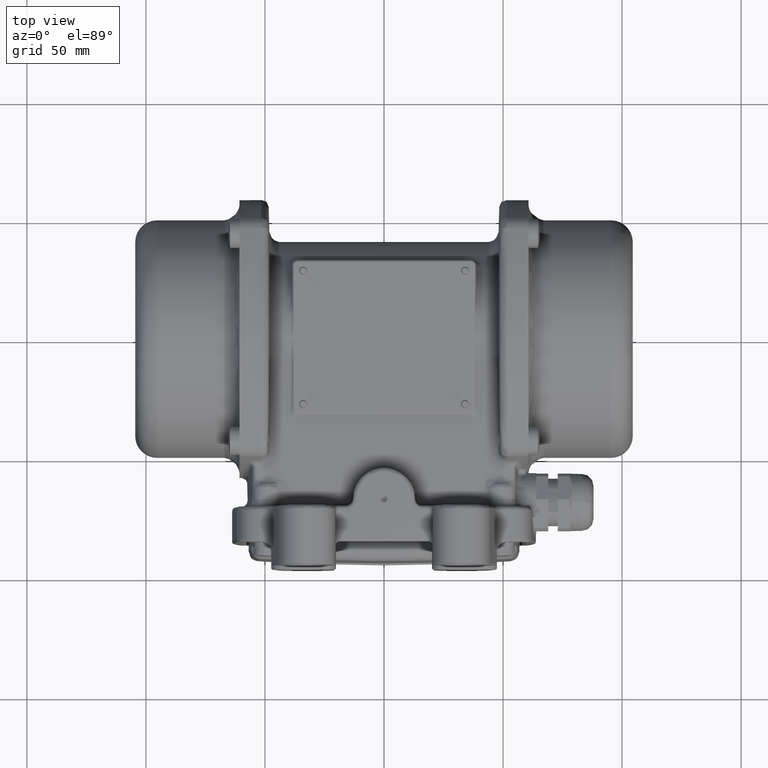
[diagram: clean part render]
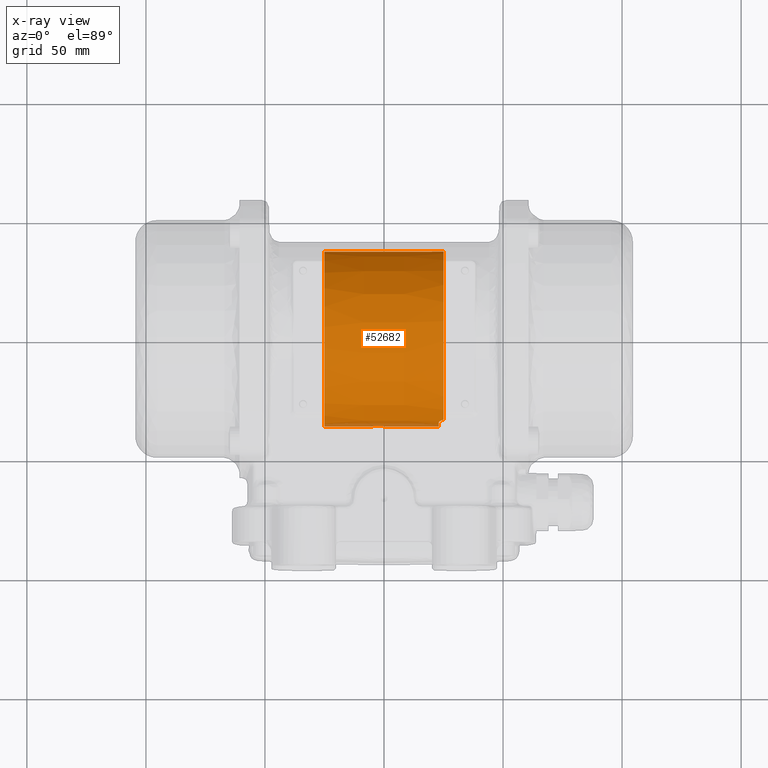
[diagram: x-ray — body ghosted, one internal face saturated and labeled with its STEP entity id]
A machine part, top view, then the same camera in x-ray: the body is ghosted and one INTERNAL B-rep face — a face not visible from any outside direction — is saturated and labeled: STEP entity #52682.
In plain terms, the highlighted conical surface has half-angle 0.029 deg.
Its self-contained STEP definition (entity closure, byte-faithful):
#650 = EDGE_CURVE ( 'NONE', #89408, #150633, #134071, .T. ) ;
#830 = VECTOR ( 'NONE', #108303, 999.9999999999998900 ) ;
#1145 = CARTESIAN_POINT ( 'NONE',  ( -0.9563445368678176200, -36.66997125892190500, 1.759931420456228400 ) ) ;
#1774 = CARTESIAN_POINT ( 'NONE',  ( -0.4733171760671993100, -36.69376556340463900, 1.172232946256167600 ) ) ;
#2522 = EDGE_LOOP ( 'NONE', ( #168771, #90016, #100109, #40108, #9744, #71952, #42666, #163345, #77190 ) ) ;
#7590 = CARTESIAN_POINT ( 'NONE',  ( 23.00049999993802900, -7.171198182231225000E-015, -3.191960584727761400E-016 ) ) ;
#9744 = ORIENTED_EDGE ( 'NONE', *, *, #32476, .F. ) ;
#10316 = CARTESIAN_POINT ( 'NONE',  ( -25.00000000000567700, 36.70000000000000300, -3.824585524291988800E-015 ) ) ;
#10339 = CARTESIAN_POINT ( 'NONE',  ( -4.044886234941166900, -36.66847809638584000, 1.758833591547438700 ) ) ;
#10419 = CONICAL_SURFACE ( 'NONE', #129312, 36.72499999999999400, 0.0004999999583332529200 ) ;
#17245 = CARTESIAN_POINT ( 'NONE',  ( -2.194009867523170500, -36.63799577085398300, 2.320615789954615100 ) ) ;
#19578 = CARTESIAN_POINT ( 'NONE',  ( 24.05293608319150400, -34.39967703996565300, 12.85961930629068000 ) ) ;
#20336 = CARTESIAN_POINT ( 'NONE',  ( -4.836381847742648800, -36.71008180907612900, 0.1542844357191367500 ) ) ;
#21288 = DIRECTION ( 'NONE',  ( -8.908856479196493600E-014, -1.000000000000000000, 1.387778780781568600E-017 ) ) ;
#21886 = LINE ( 'NONE', #66995, #151036 ) ;
#22029 = CARTESIAN_POINT ( 'NONE',  ( 23.72089544662957600, -34.54720040181219800, 12.45754743953186500 ) ) ;
#23439 = CARTESIAN_POINT ( 'NONE',  ( -25.00000000000568800, 6.537864569367977300E-015, 2.708719339139787900E-015 ) ) ;
#24310 = EDGE_CURVE ( 'NONE', #168689, #128226, #88365, .T. ) ;
#24654 = DIRECTION ( 'NONE',  ( 1.000000000000000000, -2.556573816576412400E-016, -6.111328068669280300E-017 ) ) ;
#25878 = CARTESIAN_POINT ( 'NONE',  ( -3.115173471093345200, -36.64064746252757500, 2.273738518693400500 ) ) ;
#32476 = EDGE_CURVE ( 'NONE', #162233, #52185, #67754, .T. ) ;
#35752 = CARTESIAN_POINT ( 'NONE',  ( 24.42159301464997900, -34.26481681451846800, 13.21705462366134000 ) ) ;
#38398 = CARTESIAN_POINT ( 'NONE',  ( -3.536459632794884700, -36.65073132372451400, 2.098840311261358100 ) ) ;
#39972 = EDGE_CURVE ( 'NONE', #52185, #168689, #93422, .T. ) ;
#40108 = ORIENTED_EDGE ( 'NONE', *, *, #39972, .F. ) ;
#42666 = ORIENTED_EDGE ( 'NONE', *, *, #125023, .F. ) ;
#44071 = CARTESIAN_POINT ( 'NONE',  ( -0.6441701630991381000, -36.68464517794495100, 1.427269098002925000 ) ) ;
#47614 = CARTESIAN_POINT ( 'NONE',  ( 23.18202040070352200, -34.91234112290308600, 11.39372132635884000 ) ) ;
#48231 = CARTESIAN_POINT ( 'NONE',  ( 23.04671850138258200, -35.07007580287690000, 10.90238625934902900 ) ) ;
#49321 = DIRECTION ( 'NONE',  ( -1.000000000000000000, 2.784061241712093500E-016, 1.387778780781444600E-017 ) ) ;
#50080 = CARTESIAN_POINT ( 'NONE',  ( 23.23878706364592600, -34.85879805162375800, 11.55650086603222900 ) ) ;
#51452 = CARTESIAN_POINT ( 'NONE',  ( -4.836381847742647900, -36.71008180907612200, 1.985909209095113100E-015 ) ) ;
#51522 = AXIS2_PLACEMENT_3D ( 'NONE', #62674, #177739, #148563 ) ;
#52185 = VERTEX_POINT ( 'NONE', #61620 ) ;
#52682 = ADVANCED_FACE ( 'NONE', ( #54899 ), #10419, .F. ) ;
#54899 = FACE_OUTER_BOUND ( 'NONE', #2522, .T. ) ;
#59025 = CARTESIAN_POINT ( 'NONE',  ( -0.7408807674218321800, -36.67977550077633000, 1.544710351402691000 ) ) ;
#61620 = CARTESIAN_POINT ( 'NONE',  ( 23.00049999993763400, -35.27279131684341700, 10.22166263777148700 ) ) ;
#62601 = DIRECTION ( 'NONE',  ( -2.834129572732701000E-016, -1.000000000000000000, 1.387778780781445700E-017 ) ) ;
#62674 = CARTESIAN_POINT ( 'NONE',  ( 25.00000000000568400, -7.727871227531681500E-015, -3.469446951954400600E-016 ) ) ;
#63226 = DIRECTION ( 'NONE',  ( 1.000000000000000000, -2.556573816576412400E-016, -6.111328068669280300E-017 ) ) ;
#66388 = CARTESIAN_POINT ( 'NONE',  ( -3.927401288222144500, -36.66371377929940700, 1.855499260410627300 ) ) ;
#66995 = CARTESIAN_POINT ( 'NONE',  ( 25.00000000000342100, 36.72499999999998700, -5.354121822306047900E-015 ) ) ;
#67754 = CIRCLE ( 'NONE', #177146, 36.72400024999996000 ) ;
#71952 = ORIENTED_EDGE ( 'NONE', *, *, #78804, .F. ) ;
#74284 = CARTESIAN_POINT ( 'NONE',  ( 25.00000000000340000, -36.72500000000000100, 1.627170620465773200E-016 ) ) ;
#76191 = CARTESIAN_POINT ( 'NONE',  ( 23.45004361148276900, -34.70067304166659700, 12.02314947196727800 ) ) ;
#77190 = ORIENTED_EDGE ( 'NONE', *, *, #650, .F. ) ;
#77617 = CARTESIAN_POINT ( 'NONE',  ( -4.761925981233983600, -36.70544621089631200, 0.6044238879550275500 ) ) ;
#78804 = EDGE_CURVE ( 'NONE', #144021, #162233, #156685, .T. ) ;
#78830 = DIRECTION ( 'NONE',  ( 0.9999998750000235200, 0.0004999999374996694700, -6.118144427287403200E-017 ) ) ;
#82489 = CARTESIAN_POINT ( 'NONE',  ( -3.672276898288279000, -36.65480044895253500, 2.026266372590647800 ) ) ;
#83697 = EDGE_CURVE ( 'NONE', #133466, #89408, #108622, .T. ) ;
#86358 = CARTESIAN_POINT ( 'NONE',  ( -0.1635977628726967800, -36.71241820111856000, 0.3085793634189432600 ) ) ;
#86968 = CARTESIAN_POINT ( 'NONE',  ( -1.747262620525883400, -36.64470127436946000, 2.216488131590863100 ) ) ;
#88365 = CIRCLE ( 'NONE', #51522, 36.72499999999999400 ) ;
#89408 = VERTEX_POINT ( 'NONE', #149793 ) ;
#90016 = ORIENTED_EDGE ( 'NONE', *, *, #179968, .T. ) ;
#91090 = CARTESIAN_POINT ( 'NONE',  ( 23.00050000396059600, -35.17288267098625500, 10.56642619933921700 ) ) ;
#93422 = B_SPLINE_CURVE_WITH_KNOTS ( 'NONE', 3,
 ( #177601, #91090, #48231, #47614, #50080, #175729, #76191, #121017, #22029, #107269, #19578, #35752, #120414, #162681 ),
 .UNSPECIFIED., .F., .F.,
 ( 4, 2, 2, 2, 2, 2, 4 ),
 ( 0.0000000000000000000, 0.2515002578573486400, 0.3772503867860229100, 0.5030005157146972800, 0.6287506446433716000, 0.7545007735720458100, 1.000000000000000000 ),
 .UNSPECIFIED. ) ;
#95578 = CARTESIAN_POINT ( 'NONE',  ( -4.260193310732995900, -36.67806698744738700, 1.543463494295272700 ) ) ;
#96400 = B_SPLINE_CURVE_WITH_KNOTS ( 'NONE', 3,
 ( #129999, #171600, #17245, #103143, #86968, #144251, #115641, #117462, #1145, #59025, #44071, #1774, #101930, #101299, #86358, #158539 ),
 .UNSPECIFIED., .F., .F.,
 ( 4, 2, 2, 2, 2, 2, 2, 4 ),
 ( 0.007300386405025709900, 0.007756672578726582300, 0.008212958752427454800, 0.008669244926128326400, 0.009125531099829198000, 0.009581817273530069500, 0.01003810344723094300, 0.01095067579463268600 ),
 .UNSPECIFIED. ) ;
#100109 = ORIENTED_EDGE ( 'NONE', *, *, #24310, .F. ) ;
#101299 = CARTESIAN_POINT ( 'NONE',  ( -0.2256572296308623800, -36.70830740008947400, 0.6151822656434143800 ) ) ;
#101930 = CARTESIAN_POINT ( 'NONE',  ( -0.4006803323397203400, -36.69793608354154200, 1.036417346520912300 ) ) ;
#103143 = CARTESIAN_POINT ( 'NONE',  ( -1.895557420755133800, -36.64185113269849100, 2.261347816940155700 ) ) ;
#107269 = CARTESIAN_POINT ( 'NONE',  ( 23.93514545349658100, -34.44816715744654800, 12.72914732060768200 ) ) ;
#108303 = DIRECTION ( 'NONE',  ( 0.9999998750000235200, -0.0004999999375001807800, -6.110633415449762700E-017 ) ) ;
#108622 = CIRCLE ( 'NONE', #184264, 36.69999999999999600 ) ;
#109891 = EDGE_CURVE ( 'NONE', #150633, #143309, #126282, .T. ) ;
#115641 = CARTESIAN_POINT ( 'NONE',  ( -1.330367244760326100, -36.65589035701060500, 2.027733354418234800 ) ) ;
#117462 = CARTESIAN_POINT ( 'NONE',  ( -1.076527227664946000, -36.66498983731396800, 1.858450860354556900 ) ) ;
#120414 = CARTESIAN_POINT ( 'NONE',  ( 24.69481100716889100, -34.18472183184406500, 13.42212343659269900 ) ) ;
#121017 = CARTESIAN_POINT ( 'NONE',  ( 23.62402840401200200, -34.59780423992582900, 12.31629668406550600 ) ) ;
#121661 = CARTESIAN_POINT ( 'NONE',  ( -2.499999999999998700, -36.63686915560163000, 2.335742930595166900 ) ) ;
#121918 = CARTESIAN_POINT ( 'NONE',  ( -0.1635977628728884600, -36.71241820111855200, 1.700372467681153800E-015 ) ) ;
#123051 = DIRECTION ( 'NONE',  ( -2.836060178708676800E-016, -1.000000000000000000, 1.387778780781446300E-017 ) ) ;
#125023 = EDGE_CURVE ( 'NONE', #143309, #144021, #96400, .T. ) ;
#126198 = CARTESIAN_POINT ( 'NONE',  ( 23.00049999993801800, -36.72400024999996800, 2.848991924652541300E-016 ) ) ;
#126282 = B_SPLINE_CURVE_WITH_KNOTS ( 'NONE', 3,
 ( #51452, #20336, #136125, #77617, #182087, #154056, #137960, #139778, #95578, #10339, #66388, #82489, #38398, #25878, #180844, #167116 ),
 .UNSPECIFIED., .F., .F.,
 ( 4, 2, 2, 2, 2, 2, 2, 4 ),
 ( 0.003650195772020140700, 0.004106469601145836800, 0.004562743430271533900, 0.005019017259397230900, 0.005475291088522927900, 0.005931564917648624000, 0.006387838746774319300, 0.007300386405025709900 ),
 .UNSPECIFIED. ) ;
#128226 = VERTEX_POINT ( 'NONE', #167782 ) ;
#129312 = AXIS2_PLACEMENT_3D ( 'NONE', #175818, #63226, #62601 ) ;
#129999 = CARTESIAN_POINT ( 'NONE',  ( -2.499999999999998700, -36.63686915560163000, 2.335742930595166900 ) ) ;
#131501 = CARTESIAN_POINT ( 'NONE',  ( 25.00000000000340000, -36.72500000000000100, 1.627170620465773200E-016 ) ) ;
#133466 = VERTEX_POINT ( 'NONE', #10316 ) ;
#134071 = LINE ( 'NONE', #74284, #174020 ) ;
#136125 = CARTESIAN_POINT ( 'NONE',  ( -4.821241329704144500, -36.70911748498875200, 0.3059832969366552100 ) ) ;
#137960 = CARTESIAN_POINT ( 'NONE',  ( -4.528148102976818900, -36.69182085556006000, 1.169540694590107500 ) ) ;
#139778 = CARTESIAN_POINT ( 'NONE',  ( -4.358761089934415800, -36.68293753533525600, 1.423325386513182100 ) ) ;
#143309 = VERTEX_POINT ( 'NONE', #121661 ) ;
#144021 = VERTEX_POINT ( 'NONE', #121918 ) ;
#144251 = CARTESIAN_POINT ( 'NONE',  ( -1.464485350796681300, -36.65173806061005700, 2.099387885825068100 ) ) ;
#148563 = DIRECTION ( 'NONE',  ( -6.216190862860390800E-014, -1.000000000000000000, 1.387778780781531300E-017 ) ) ;
#149793 = CARTESIAN_POINT ( 'NONE',  ( -25.00000000000569900, -36.69999999999998900, 3.218034151686578700E-015 ) ) ;
#150633 = VERTEX_POINT ( 'NONE', #162760 ) ;
#151036 = VECTOR ( 'NONE', #78830, 999.9999999999998900 ) ;
#154056 = CARTESIAN_POINT ( 'NONE',  ( -4.599849201353941400, -36.69586672400353700, 1.035447365845578700 ) ) ;
#156685 = LINE ( 'NONE', #131501, #830 ) ;
#156996 = DIRECTION ( 'NONE',  ( 0.9999998750000235200, -0.0004999999375001807800, -6.110633415449762700E-017 ) ) ;
#158539 = CARTESIAN_POINT ( 'NONE',  ( -0.1635977628728884600, -36.71241820111855200, 1.700372467681153800E-015 ) ) ;
#162233 = VERTEX_POINT ( 'NONE', #126198 ) ;
#162681 = CARTESIAN_POINT ( 'NONE',  ( 24.99999967960989300, -34.11653370245300500, 13.59366597800677200 ) ) ;
#162760 = CARTESIAN_POINT ( 'NONE',  ( -4.836381847742647900, -36.71008180907612200, 1.985909209095113100E-015 ) ) ;
#163345 = ORIENTED_EDGE ( 'NONE', *, *, #109891, .F. ) ;
#167116 = CARTESIAN_POINT ( 'NONE',  ( -2.499999999999998700, -36.63686915560163000, 2.335742930595166900 ) ) ;
#167782 = CARTESIAN_POINT ( 'NONE',  ( 25.00000000000569500, 36.72499999999998700, -5.354121822306186700E-015 ) ) ;
#168689 = VERTEX_POINT ( 'NONE', #169599 ) ;
#168771 = ORIENTED_EDGE ( 'NONE', *, *, #83697, .F. ) ;
#169599 = CARTESIAN_POINT ( 'NONE',  ( 24.99999967960989300, -34.11653370245300500, 13.59366597800677200 ) ) ;
#171600 = CARTESIAN_POINT ( 'NONE',  ( -2.345713026074248900, -36.63694641272307000, 2.335743604807380500 ) ) ;
#174020 = VECTOR ( 'NONE', #156996, 999.9999999999998900 ) ;
#175729 = CARTESIAN_POINT ( 'NONE',  ( 23.37292785545425000, -34.75293953222008300, 11.87125241696505800 ) ) ;
#175818 = CARTESIAN_POINT ( 'NONE',  ( 25.00000000000341100, -6.245004513516410900E-015, -3.469446951954085000E-016 ) ) ;
#177146 = AXIS2_PLACEMENT_3D ( 'NONE', #7590, #49321, #21288 ) ;
#177601 = CARTESIAN_POINT ( 'NONE',  ( 23.00049999993763400, -35.27279131684341700, 10.22166263777148700 ) ) ;
#177739 = DIRECTION ( 'NONE',  ( -1.000000000000000000, 2.784061241712093500E-016, 1.387778780781444600E-017 ) ) ;
#179968 = EDGE_CURVE ( 'NONE', #133466, #128226, #21886, .T. ) ;
#180844 = CARTESIAN_POINT ( 'NONE',  ( -2.808565599529139400, -36.63671464553906500, 2.335741582207221600 ) ) ;
#182087 = CARTESIAN_POINT ( 'NONE',  ( -4.717029338393674100, -36.70269617967481000, 0.7527133006062702900 ) ) ;
#184264 = AXIS2_PLACEMENT_3D ( 'NONE', #23439, #24654, #123051 ) ;